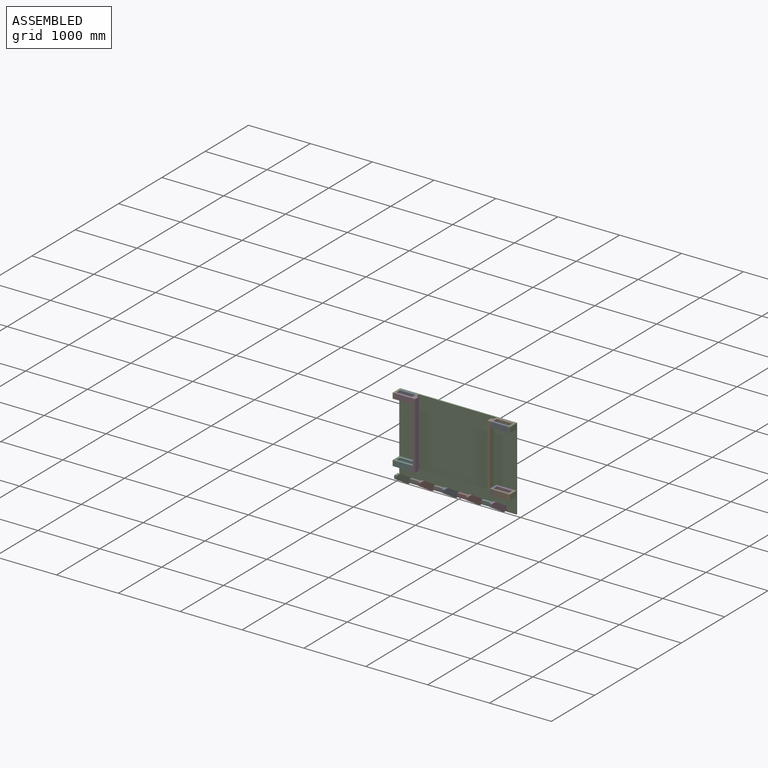
[diagram: assembled view]
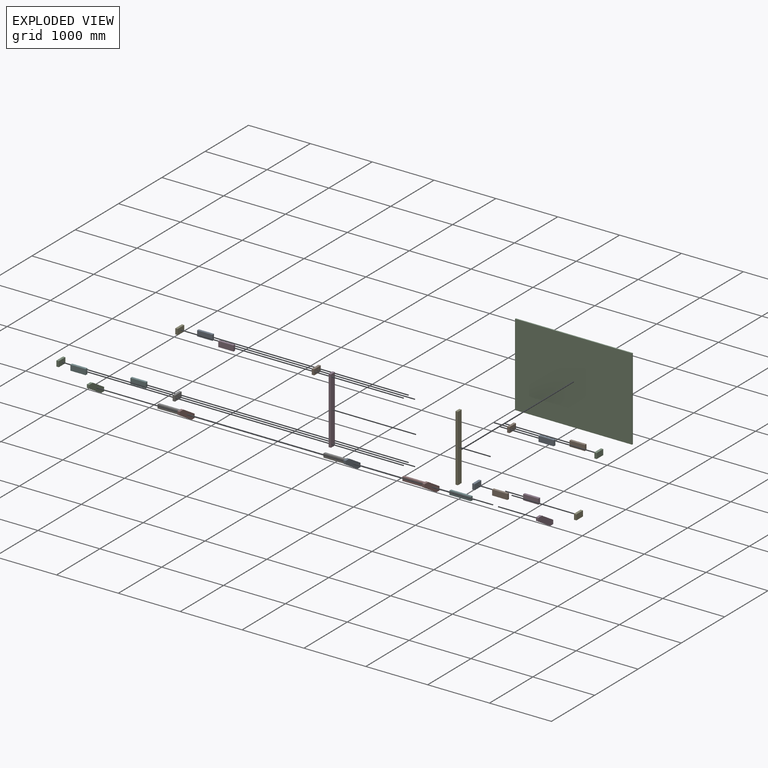
[diagram: exploded view]
GUIDED TOUR — MATED ASSEMBLY (Onshape document a717d182e45f5ee2817b2806, AutoMate assembly a717d182e45f5ee2817b2806_24babec2c8e26cd1942f65e2_57b267885e59902b762f2311_default)

This assembly has 28 components, labeled P0..P27 below (a component is one placed occurrence of a part; the same part can appear more than once), held together by 26 mates. A mate is a constraint between two components; its type names the relative motion it leaves free:
  FASTENED — locks the two components together rigidly (no relative motion).
Axis/direction vectors are unit vectors and 'through' points are millimeter coordinates, both in the assembly's world frame.

MATES
  1. FASTENED "Fastened 25": P23 <-> P14, direction (1.000, 0.000, 0.000) through (-365.15, -19.05, -647.70) mm
  2. FASTENED "Fastened 11": P20 <-> P0, direction (1.000, 0.000, 0.000) through (622.30, -171.45, -406.40) mm
  3. FASTENED "Fastened 14": P25 <-> P12, direction (1.000, 0.000, 0.000) through (908.05, -171.45, -406.40) mm
  4. FASTENED "Fastened 15": P22 <-> P19, direction (1.000, 0.000, 0.000) through (-622.30, -171.45, -406.40) mm
  5. FASTENED "Fastened 23": P10 <-> P6, direction (1.000, 0.000, 0.000) through (-750.90, -19.05, -647.70) mm
  6. FASTENED "Fastened 6": P26 <-> P17, direction (-1.000, 0.000, 0.000) through (908.05, -19.05, 666.75) mm
  7. FASTENED "Fastened 8": P24 <-> P1, direction (-1.000, 0.000, 0.000) through (660.40, -171.45, 577.85) mm
  8. FASTENED "Fastened 12": P0 <-> P25, direction (1.000, 0.000, 0.000) through (660.40, -171.45, -406.40) mm
  9. FASTENED "Fastened 1": P18 <-> P4, direction (0.000, -1.000, 0.000) through (-946.15, -19.05, 666.75) mm
  10. FASTENED "Fastened 7": P24 <-> P26, direction (1.000, 0.000, 0.000) through (908.05, -171.45, 577.85) mm
  11. FASTENED "Fastened 26": P14 <-> P16, direction (1.000, 0.000, 0.000) through (-17.50, -19.05, -647.70) mm
  12. FASTENED "Fastened 16": P22 <-> P5, direction (-1.000, 0.000, 0.000) through (-660.40, -19.05, -406.40) mm
  13. FASTENED "Fastened 27": P16 <-> P15, direction (1.000, 0.000, 0.000) through (20.60, -19.05, -647.70) mm
  14. FASTENED "Fastened 18": P5 <-> P2, direction (-1.000, 0.000, 0.000) through (-908.05, -19.05, -406.40) mm
  15. FASTENED "Fastened 30": P13 <-> P3, direction (1.000, 0.000, 0.000) through (754.00, -19.05, -647.70) mm
  16. FASTENED "Fastened 29": P7 <-> P13, direction (1.000, 0.000, 0.000) through (406.35, -19.05, -647.70) mm
  17. FASTENED "Fastened 24": P6 <-> P23, direction (1.000, 0.000, 0.000) through (-403.25, -19.05, -647.70) mm
  18. FASTENED "Fastened 28": P15 <-> P7, direction (1.000, 0.000, 0.000) through (368.25, -19.05, -647.70) mm
  19. FASTENED "Fastened 17": P21 <-> P22, direction (1.000, 0.000, 0.000) through (-660.40, -171.45, -406.40) mm
  20. FASTENED "Fastened 9": P9 <-> P19, direction (1.000, 0.000, 0.000) through (-622.30, -171.45, 666.75) mm
  21. FASTENED "Fastened 2": P4 <-> P8, direction (1.000, 0.000, 0.000) through (-908.05, -19.05, 577.85) mm
  22. FASTENED "Fastened 13": P0 <-> P11, direction (1.000, 0.000, 0.000) through (660.40, -19.05, -406.40) mm
  23. FASTENED "Fastened 3": P4 <-> P27, direction (1.000, 0.000, 0.000) through (-908.05, -171.45, 577.85) mm
  24. FASTENED "Fastened 4": P9 <-> P27, direction (-1.000, 0.000, 0.000) through (-660.40, -171.45, 577.85) mm
  25. FASTENED "Fastened 5": P18 <-> P26, direction (0.000, -1.000, 0.000) through (946.15, -19.05, 666.75) mm
  26. FASTENED "Fastened 10": P1 <-> P20, direction (-1.000, 0.000, 0.000) through (622.30, -171.45, 666.75) mm

ASSEMBLY ORDER
  1. P25 — the base component [order verified]
  2. P11 [order verified]
  3. P0 [order verified]
  4. P20 [order verified]
  5. P13 [order verified]
  6. P7 [order verified]
  7. P15 [order verified]
  8. P3 [order verified]
  9. P14 [order verified]
  10. P16 [order verified]
  11. P6 [order verified]
  12. P19 [order verified]
  13. P9 [order verified]
  14. P12 [order verified]
  15. P21 [order verified]
  16. P5 [order verified]
  17. P4 [order verified]
  18. P24 [order verified]
  19. P17 [order verified]
  20. P23 [order verified]
  21. P10 [order verified]
  22. P27 [order verified]
  23. P8 [order verified]
  24. P22 [order verified]
  25. P1 [order verified]
  26. P26 [order verified]
  27. P2 [order verified]
  28. P18 [order verified]
Order-tag legend:
  [order verified] — this step's position reverses a verified removal order: the component was checked to insert without passing through the ones already placed.

Of the 28 components, 28 carry the full construction recipe — the FeatureScript program that regenerates the part's solid from scratch; the rest are supplied as boundary geometry only.
Because this assembly has more than 12 components, the tour below covers the 12 most significant ones individually (every recipe-attached component first, then the largest by part volume), in assembly order; the remaining 16 are summarized together in a grouped section at the end.
Each toured component is shown spotlighted twice — in the assembled view, then in the exploded view, where a leader line traces a displaced component back to its assembled socket (saturated green if recipe-attached, orange if geometry-only; every other component desaturated gray) — followed by its recipe or geometry summary and the mates that hold it.
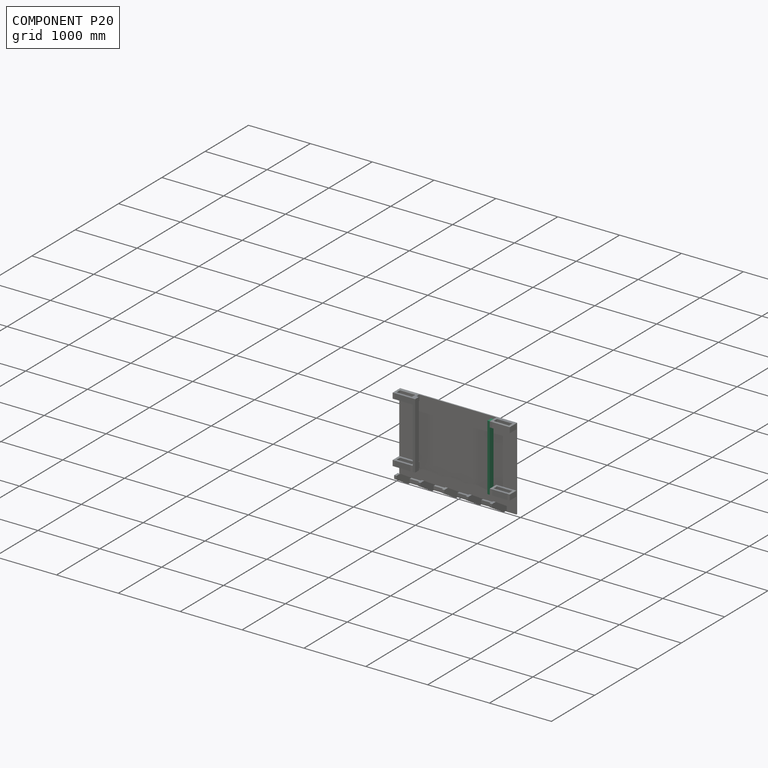
[diagram: component P20 — assembled]
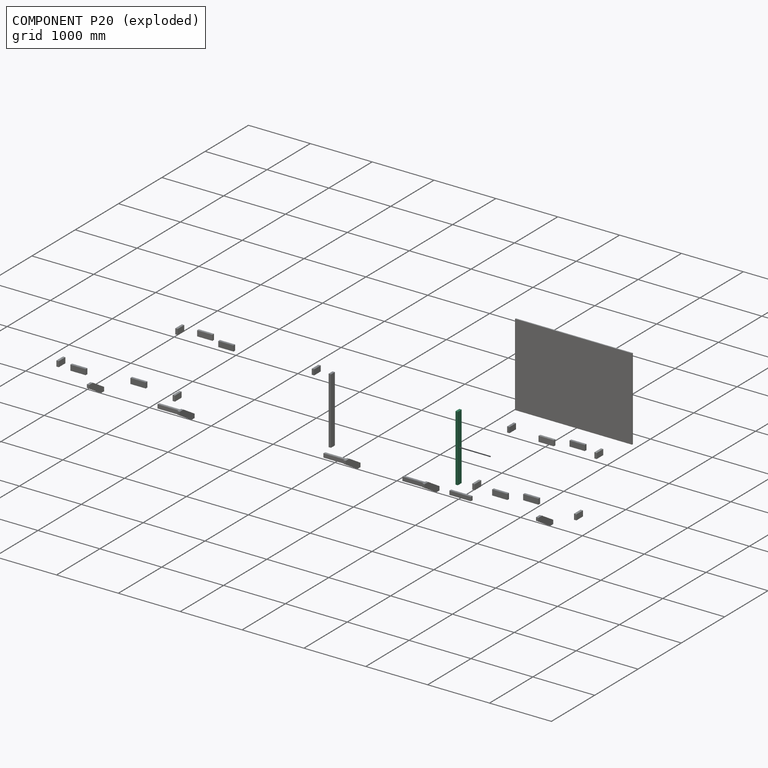
[diagram: component P20 — exploded]
COMPONENT P20 — same part as P19 (CADFS 00651156); its construction recipe is shown at P19.
Held by: FASTENED mate "Fastened 11" to P0; FASTENED mate "Fastened 10" to P1.
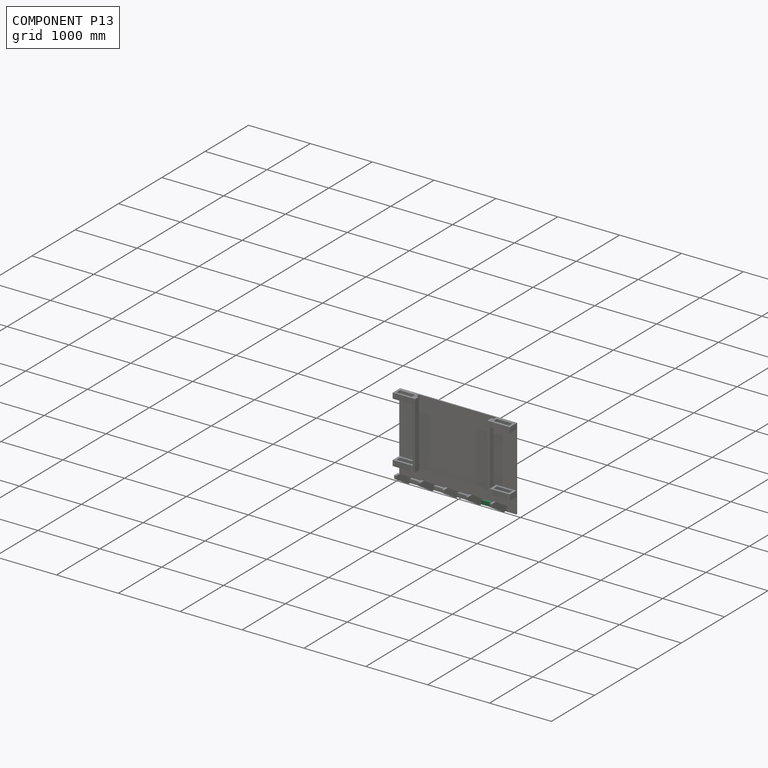
[diagram: component P13 — assembled]
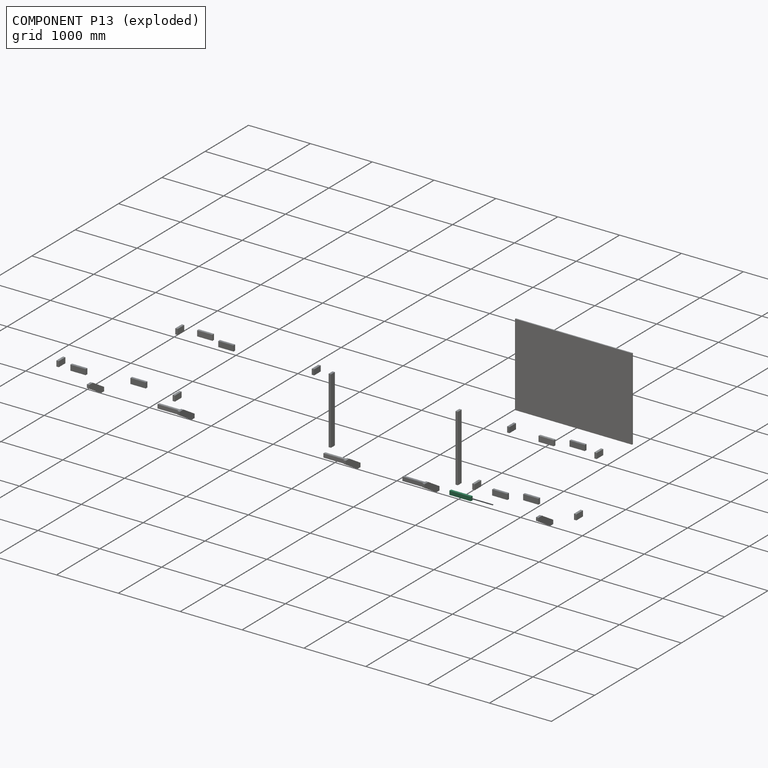
[diagram: component P13 — exploded]
COMPONENT P13 — same part as P6 (CADFS 00651160); its construction recipe is shown at P6.
Held by: FASTENED mate "Fastened 30" to P3; FASTENED mate "Fastened 29" to P7.
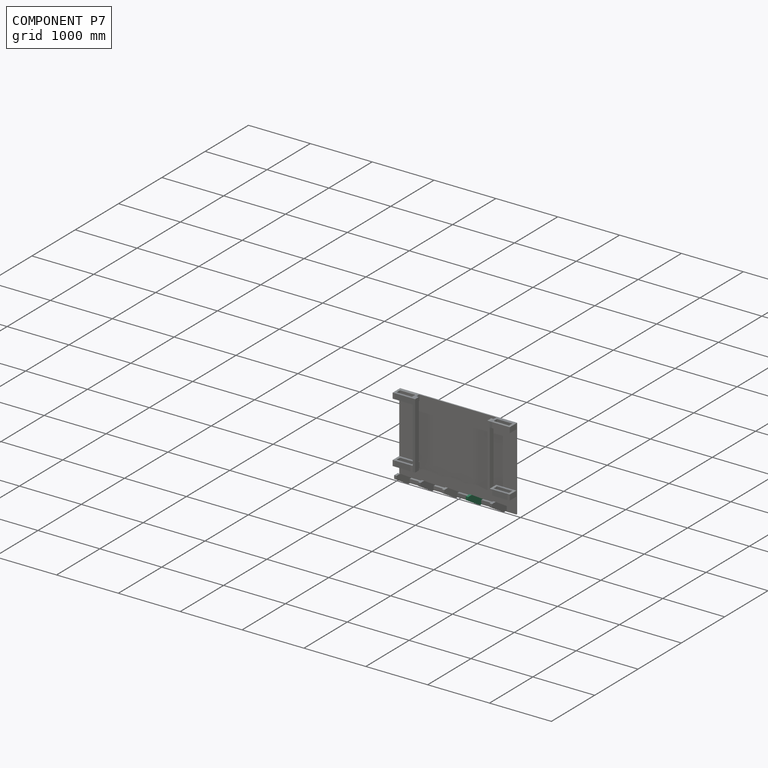
[diagram: component P7 — assembled]
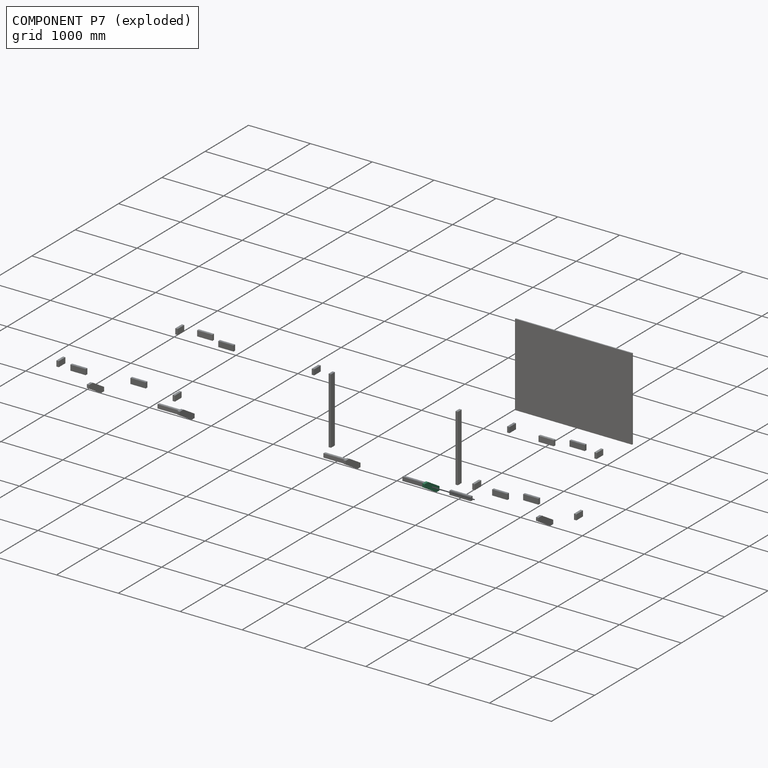
[diagram: component P7 — exploded]
COMPONENT P7 — same part as P3 (CADFS 00651155); its construction recipe is shown at P3.
Held by: FASTENED mate "Fastened 29" to P13; FASTENED mate "Fastened 28" to P15.
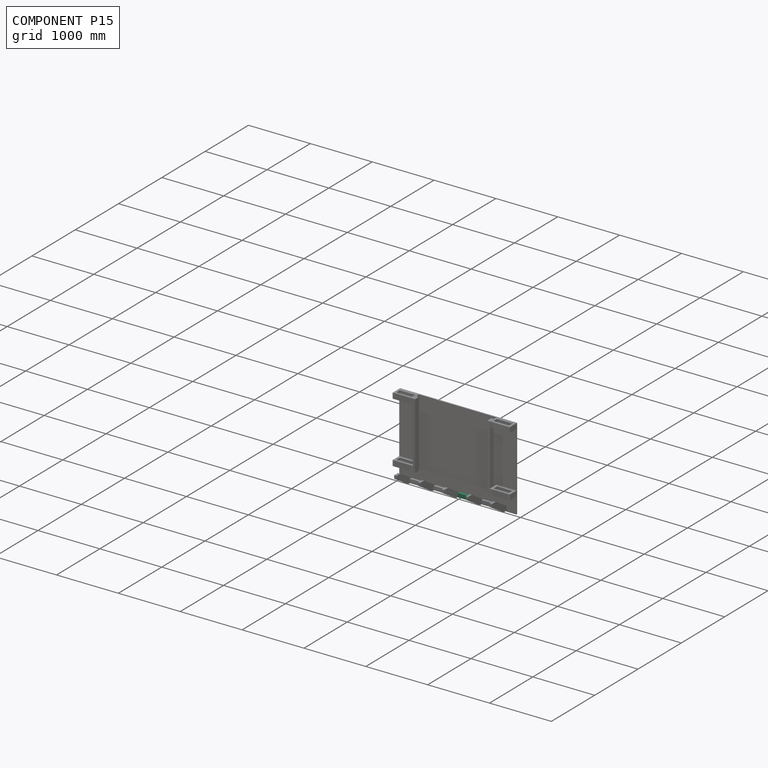
[diagram: component P15 — assembled]
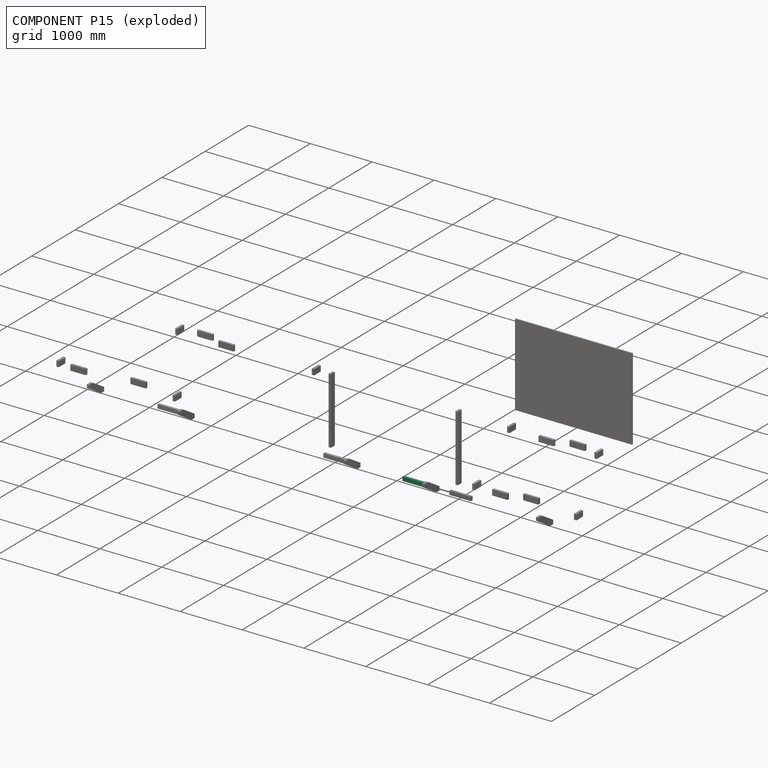
[diagram: component P15 — exploded]
COMPONENT P15 — same part as P6 (CADFS 00651160); its construction recipe is shown at P6.
Held by: FASTENED mate "Fastened 27" to P16; FASTENED mate "Fastened 28" to P7.
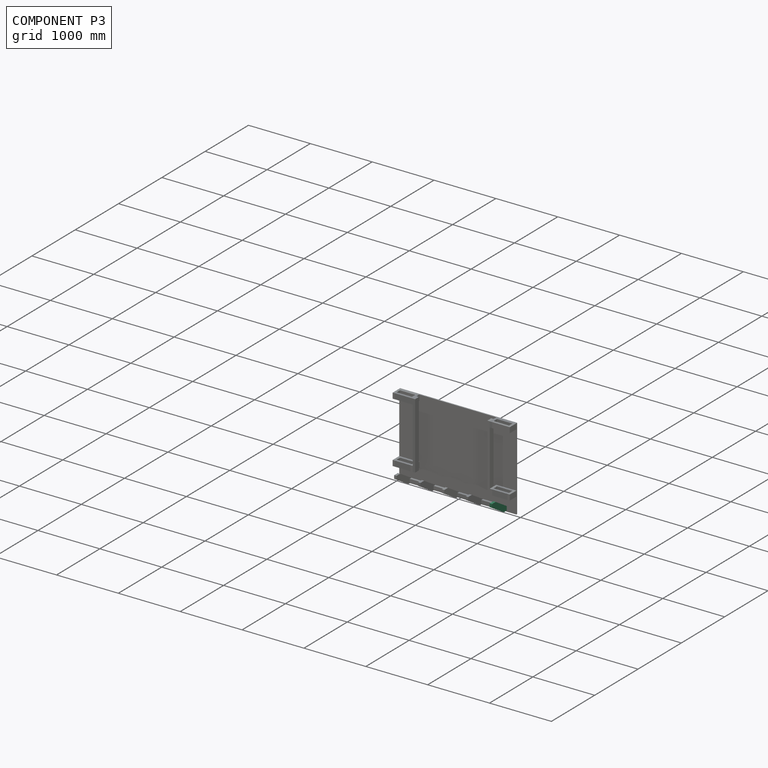
[diagram: component P3 — assembled]
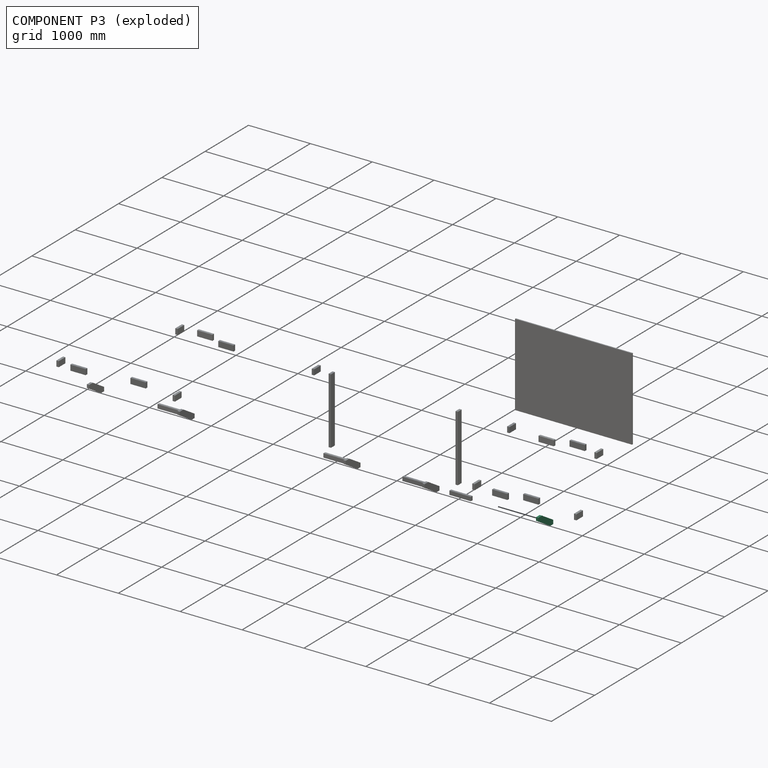
[diagram: component P3 — exploded]
COMPONENT P3 — recipe-attached (CADFS 00651155, mesh-verified: the recipe's output STEP matches this component's geometry to below the mesh-comparison resolution (tessellation chordal tolerance ~0.616 mm)).
Held by: FASTENED mate "Fastened 30" to P13.
Construction recipe (FeatureScript — the CAD program that rebuilds this solid; sketch coordinates are in the units given by the * unit suffixes, e.g. mm):

FeatureScript 1511;
import(path : "onshape/std/geometry.fs", version : "1511.0");
import(path : "onshape/std/common.fs", version : "1511.0");
const mm = millimeter;
const VERTEX = EntityType.VERTEX;
const EDGE = EntityType.EDGE;
const FACE = EntityType.FACE;
const BODY = EntityType.BODY;
function v(x, y){return vector(x, y);}
function OD(order){return orderDisambiguation(order);}
function OSD(set){return originalSetDisambiguation(set);}
function TD(topology){return topologyDisambiguation(topology);}
function TDD(query){return trueDependencyDisambiguation(query);}
function sQuery(a, b, c) {return sketchEntityQuery(a, b, c);}

annotation { "Feature Type Name" : "Feature", "Feature Type Description" : "" }
export const myFeature = defineFeature(function(context is Context, id is Id, definition is map)
    precondition{}
    {
        {
            var Q0;
            Q0=qCreatedBy(makeId("Right.planeOp"),FACE);
            var sketch = newSketch(context, id + "F0", { "sketchPlane" : qUnion([Q0])});
            skPoint(sketch, "E0.middle", {"position": v(0, 0) * mm});
            skLineSegment(sketch, "E1.0", {"start": v(96.03, 111.13) * mm, "end": v(-161.92, -47.27) * mm});
            skLineSegment(sketch, "E2.0", {"start": v(180.98, 58.96) * mm, "end": v(-96.03, -111.13) * mm});
            skLineSegment(sketch, "E3", {"start": v(180.98, 111.13) * mm, "end": v(180.98, 58.96) * mm});
            skLineSegment(sketch, "E4", {"start": v(180.98, 111.13) * mm, "end": v(96.03, 111.12) * mm});
            skLineSegment(sketch, "E5", {"start": v(-161.92, -111.13) * mm, "end": v(-96.03, -111.13) * mm});
            skLineSegment(sketch, "E6", {"start": v(-161.92, -47.27) * mm, "end": v(-161.92, -111.13) * mm});
            skSolve(sketch);
        }
        {
            var Q0;
            Q0=makeQuery(id+"F0.imprint","IMPRINT",FACE,{"disambiguationData":[TD([[makeQuery(id+"F0.imprint","IMPRINT",EDGE,{"derivedFrom":sQuery(id+"F0.wireOp",EDGE,"E1.0")}),1.0]])]});
            extrude(context, id + "F1", {"entities" : qUnion([Q0]), "endBound" : BoundingType.SYMMETRIC, "depth" : 38.1 * mm, "offsetDistance" : 25.4 * mm});
        }
    });
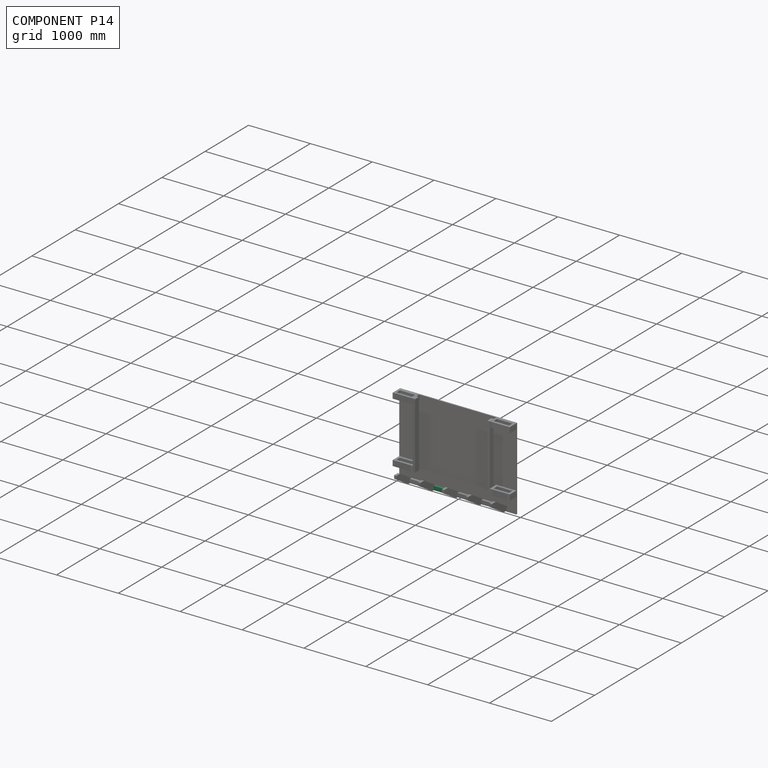
[diagram: component P14 — assembled]
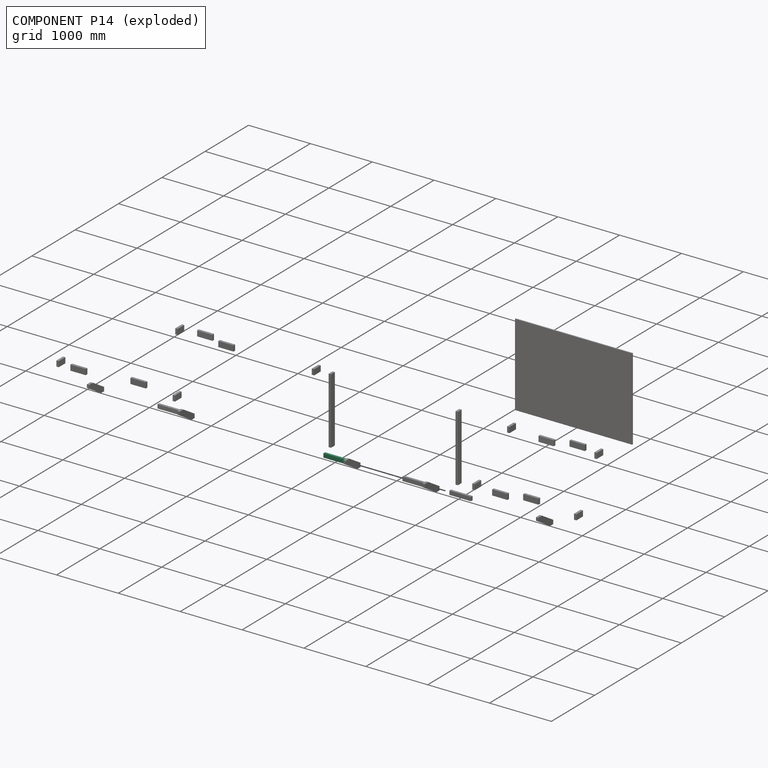
[diagram: component P14 — exploded]
COMPONENT P14 — same part as P6 (CADFS 00651160); its construction recipe is shown at P6.
Held by: FASTENED mate "Fastened 25" to P23; FASTENED mate "Fastened 26" to P16.
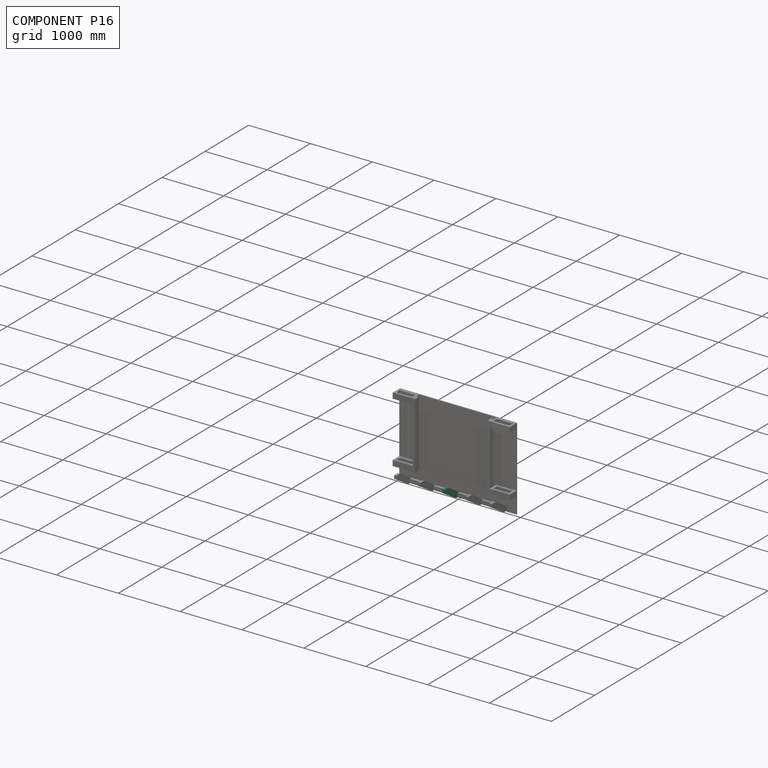
[diagram: component P16 — assembled]
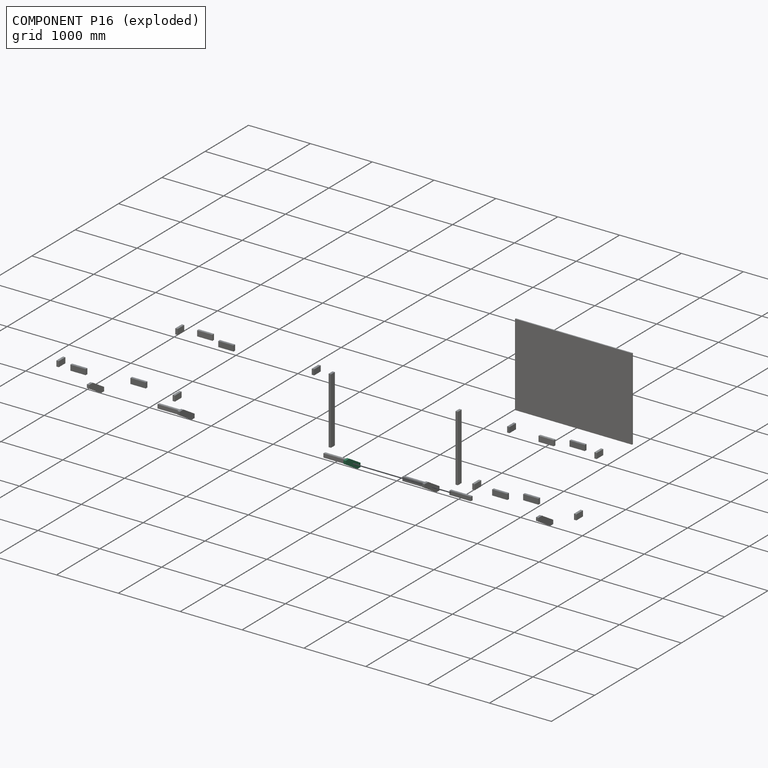
[diagram: component P16 — exploded]
COMPONENT P16 — same part as P3 (CADFS 00651155); its construction recipe is shown at P3.
Held by: FASTENED mate "Fastened 26" to P14; FASTENED mate "Fastened 27" to P15.
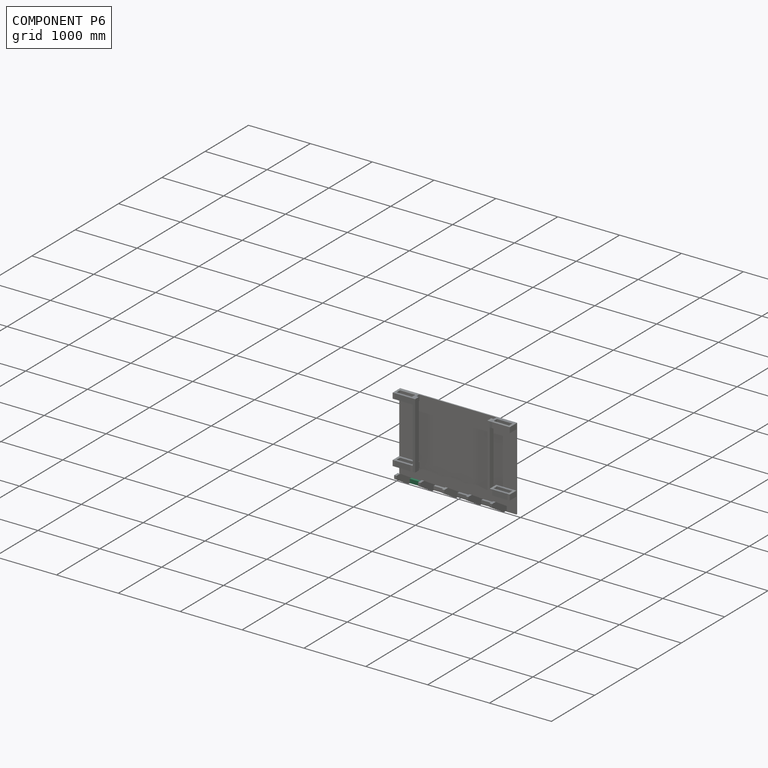
[diagram: component P6 — assembled]
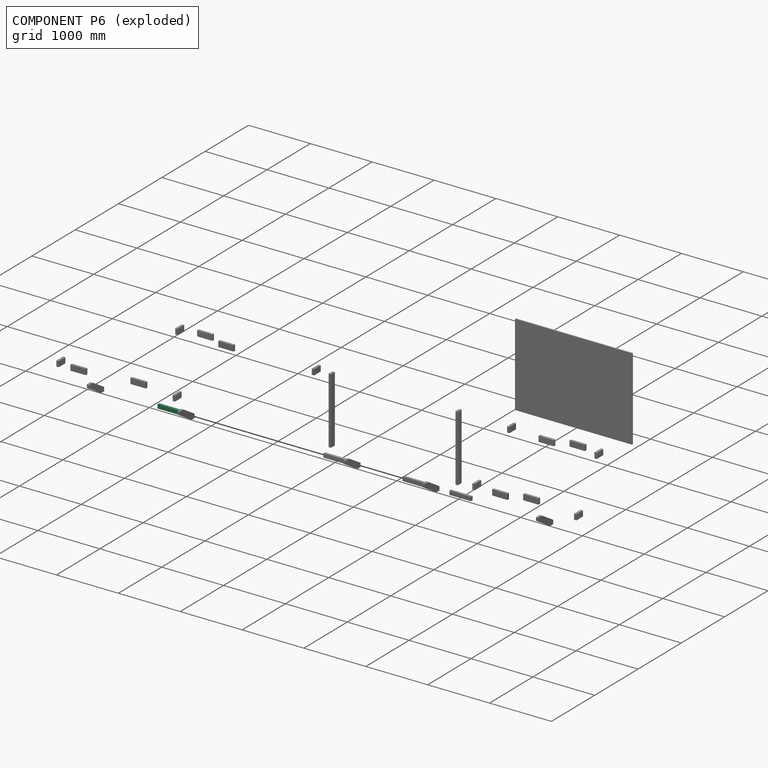
[diagram: component P6 — exploded]
COMPONENT P6 — recipe-attached (CADFS 00651160, mesh-verified: the recipe's output STEP matches this component's geometry to below the mesh-comparison resolution (tessellation chordal tolerance ~0.533 mm)).
Held by: FASTENED mate "Fastened 23" to P10; FASTENED mate "Fastened 24" to P23.
Construction recipe (FeatureScript — the CAD program that rebuilds this solid; sketch coordinates are in the units given by the * unit suffixes, e.g. mm):

FeatureScript 1511;
import(path : "onshape/std/geometry.fs", version : "1511.0");
import(path : "onshape/std/common.fs", version : "1511.0");
const mm = millimeter;
const VERTEX = EntityType.VERTEX;
const EDGE = EntityType.EDGE;
const FACE = EntityType.FACE;
const BODY = EntityType.BODY;
function v(x, y){return vector(x, y);}
function OD(order){return orderDisambiguation(order);}
function OSD(set){return originalSetDisambiguation(set);}
function TD(topology){return topologyDisambiguation(topology);}
function TDD(query){return trueDependencyDisambiguation(query);}
function sQuery(a, b, c) {return sketchEntityQuery(a, b, c);}

annotation { "Feature Type Name" : "Feature", "Feature Type Description" : "" }
export const myFeature = defineFeature(function(context is Context, id is Id, definition is map)
    precondition{}
    {
        {
            var Q0;
            Q0=qCreatedBy(makeId("Right.planeOp"),FACE);
            var sketch = newSketch(context, id + "F0", { "sketchPlane" : qUnion([Q0])});
            skLineSegment(sketch, "E0.bottom", {"start": v(19.05, 31.93) * mm, "end": v(-19.05, 31.93) * mm});
            skLineSegment(sketch, "E0.top", {"start": v(19.05, -31.93) * mm, "end": v(-19.05, -31.93) * mm});
            skLineSegment(sketch, "E0.left", {"start": v(19.05, 31.93) * mm, "end": v(19.05, -31.93) * mm});
            skLineSegment(sketch, "E0.right", {"start": v(-19.05, 31.93) * mm, "end": v(-19.05, -31.93) * mm});
            skPoint(sketch, "E0.middle", {"position": v(0, 0) * mm});
            skSolve(sketch);
        }
        {
            var Q0;
            Q0=makeQuery(id+"F0.imprint","IMPRINT",FACE,{"disambiguationData":[TD([[makeQuery(id+"F0.imprint","IMPRINT",EDGE,{"derivedFrom":sQuery(id+"F0.wireOp",EDGE,"E0.bottom")}),1.0]])]});
            extrude(context, id + "F1", {"entities" : qUnion([Q0]), "depth" : 347.65 * mm, "offsetDistance" : 25.4 * mm});
        }
    });
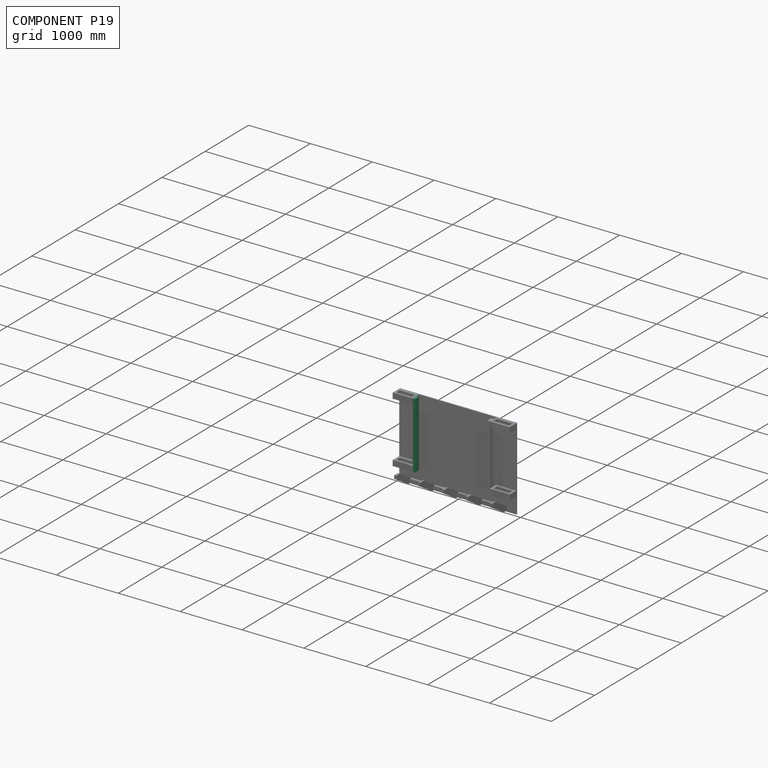
[diagram: component P19 — assembled]
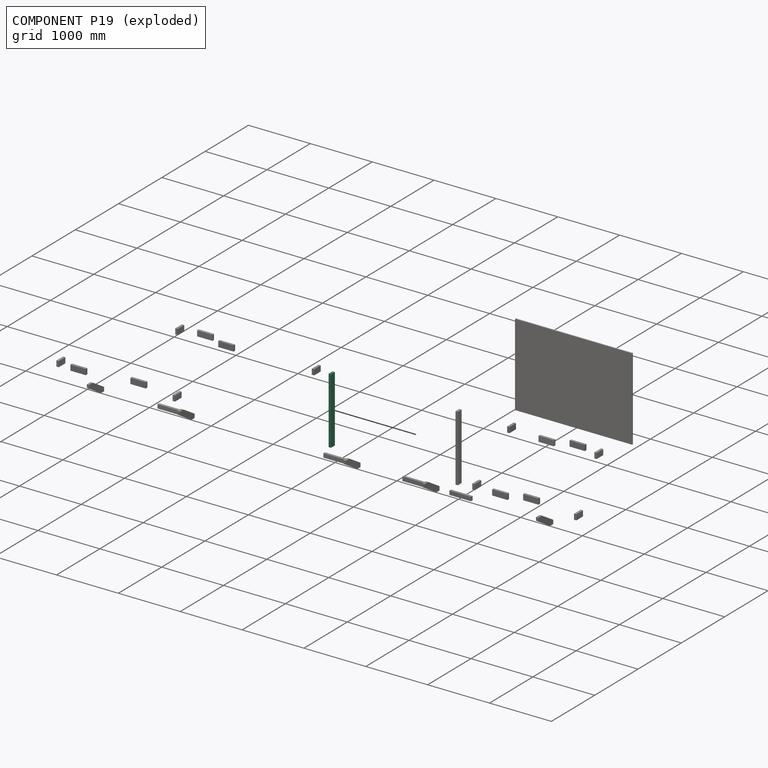
[diagram: component P19 — exploded]
COMPONENT P19 — recipe-attached (CADFS 00651156, mesh-verified: the recipe's output STEP matches this component's geometry to below the mesh-comparison resolution (tessellation chordal tolerance ~1.62 mm)).
Held by: FASTENED mate "Fastened 15" to P22; FASTENED mate "Fastened 9" to P9.
Construction recipe (FeatureScript — the CAD program that rebuilds this solid; sketch coordinates are in the units given by the * unit suffixes, e.g. mm):

FeatureScript 1511;
import(path : "onshape/std/geometry.fs", version : "1511.0");
import(path : "onshape/std/common.fs", version : "1511.0");
const mm = millimeter;
const VERTEX = EntityType.VERTEX;
const EDGE = EntityType.EDGE;
const FACE = EntityType.FACE;
const BODY = EntityType.BODY;
function v(x, y){return vector(x, y);}
function OD(order){return orderDisambiguation(order);}
function OSD(set){return originalSetDisambiguation(set);}
function TD(topology){return topologyDisambiguation(topology);}
function TDD(query){return trueDependencyDisambiguation(query);}
function sQuery(a, b, c) {return sketchEntityQuery(a, b, c);}

annotation { "Feature Type Name" : "Feature", "Feature Type Description" : "" }
export const myFeature = defineFeature(function(context is Context, id is Id, definition is map)
    precondition{}
    {
        {
            var Q0;
            Q0=qCreatedBy(makeId("Top.planeOp"),FACE);
            var sketch = newSketch(context, id + "F0", { "sketchPlane" : qUnion([Q0])});
            skLineSegment(sketch, "E0.bottom", {"start": v(19.05, -44.45) * mm, "end": v(-19.05, -44.45) * mm});
            skLineSegment(sketch, "E0.top", {"start": v(19.05, 44.45) * mm, "end": v(-19.05, 44.45) * mm});
            skLineSegment(sketch, "E0.left", {"start": v(19.05, -44.45) * mm, "end": v(19.05, 44.45) * mm});
            skLineSegment(sketch, "E0.right", {"start": v(-19.05, -44.45) * mm, "end": v(-19.05, 44.45) * mm});
            skPoint(sketch, "E0.middle", {"position": v(0, 0) * mm});
            skSolve(sketch);
        }
        {
            var Q0;
            Q0 = qSketchRegion(id + "F0", true);
            var Q1;
            Q1=makeQuery(id+"F0.imprint","IMPRINT",FACE,{"disambiguationData":[TD([[makeQuery(id+"F0.imprint","IMPRINT",EDGE,{"derivedFrom":sQuery(id+"F0.wireOp",EDGE,"c484430e-5b11-4d19-9ad6-bfa51f2c2b4a.bottom")}),1.0]])]});
            extrude(context, id + "F1", {"entities" : qUnion([Q0, Q1]), "depth" : 1073.15 * mm, "offsetDistance" : 25.4 * mm});
        }
    });
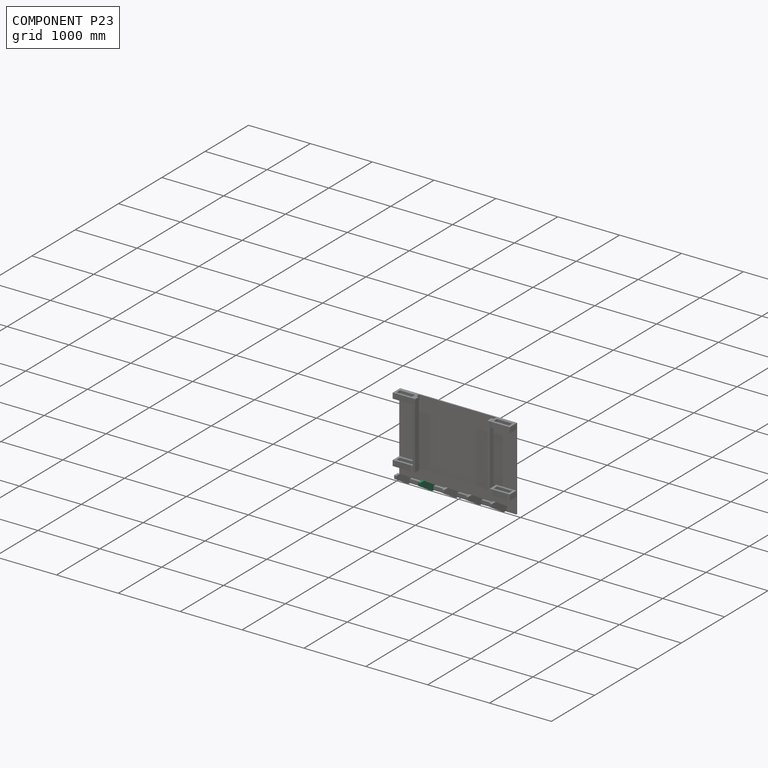
[diagram: component P23 — assembled]
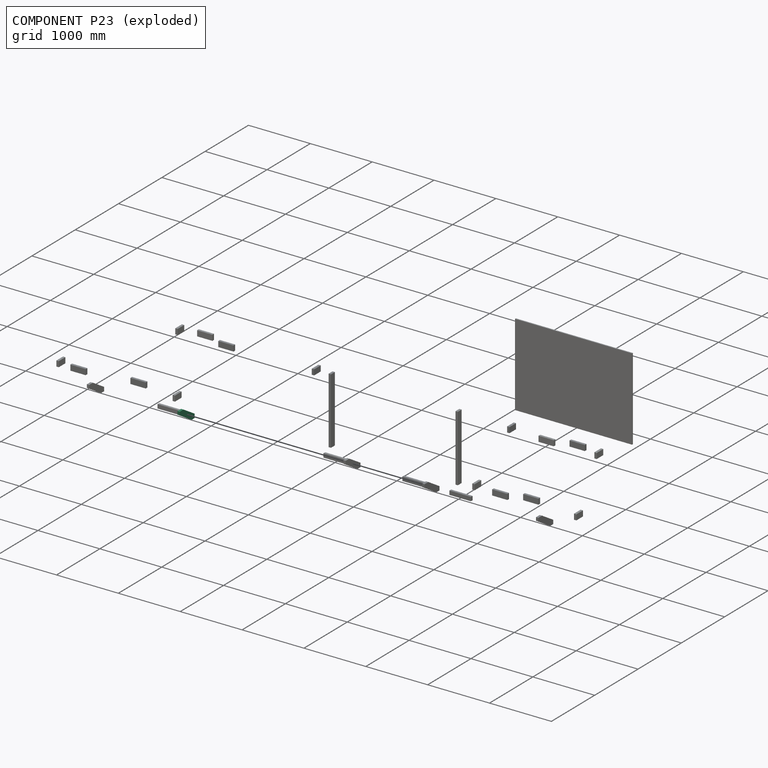
[diagram: component P23 — exploded]
COMPONENT P23 — same part as P3 (CADFS 00651155); its construction recipe is shown at P3.
Held by: FASTENED mate "Fastened 25" to P14; FASTENED mate "Fastened 24" to P6.
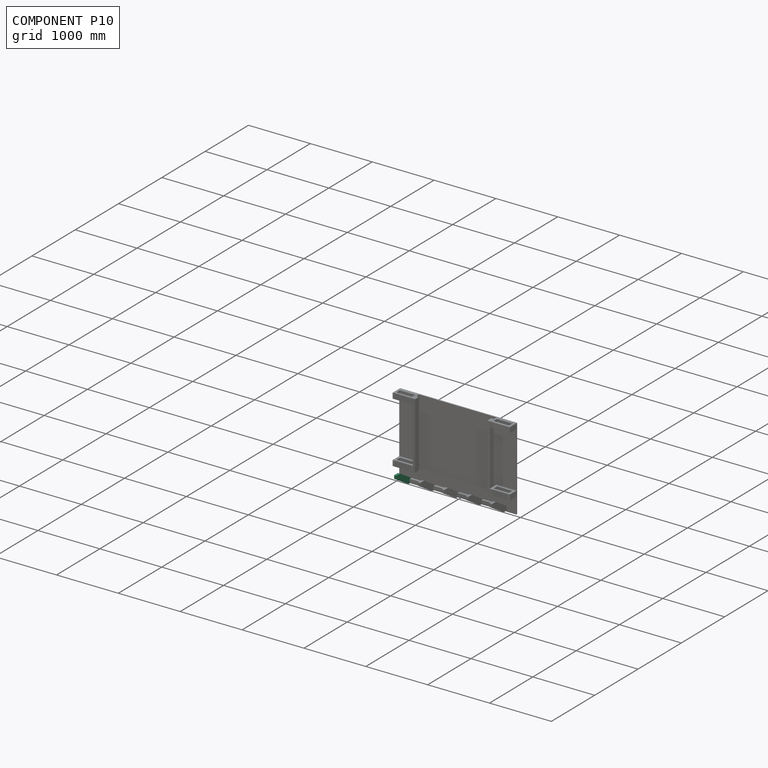
[diagram: component P10 — assembled]
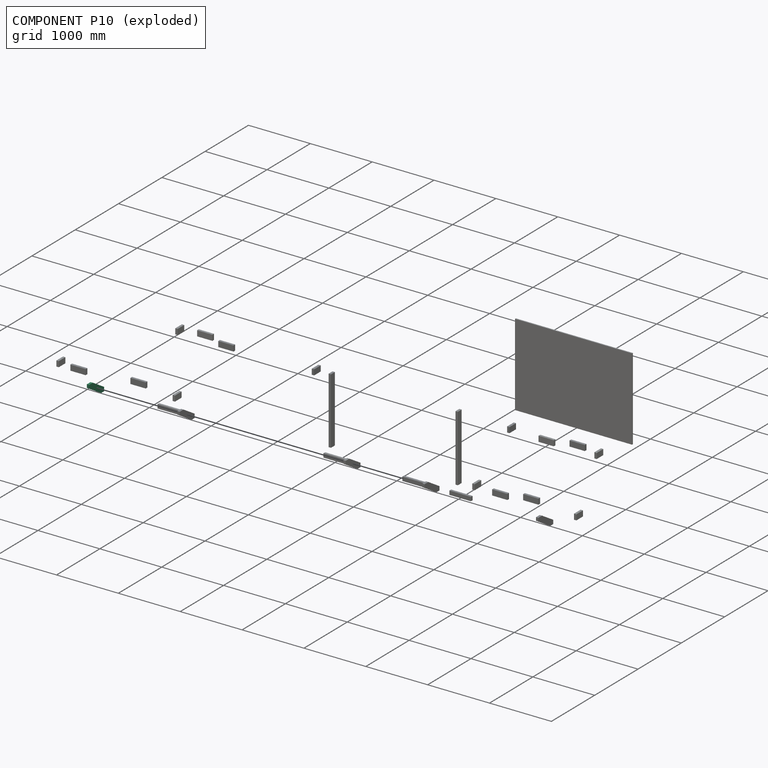
[diagram: component P10 — exploded]
COMPONENT P10 — same part as P3 (CADFS 00651155); its construction recipe is shown at P3.
Held by: FASTENED mate "Fastened 23" to P6.
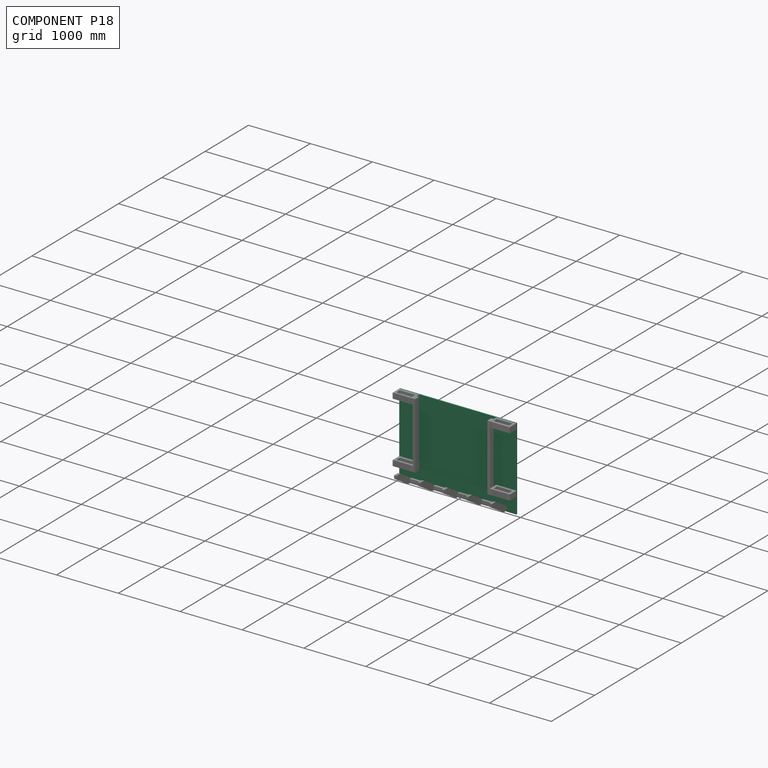
[diagram: component P18 — assembled]
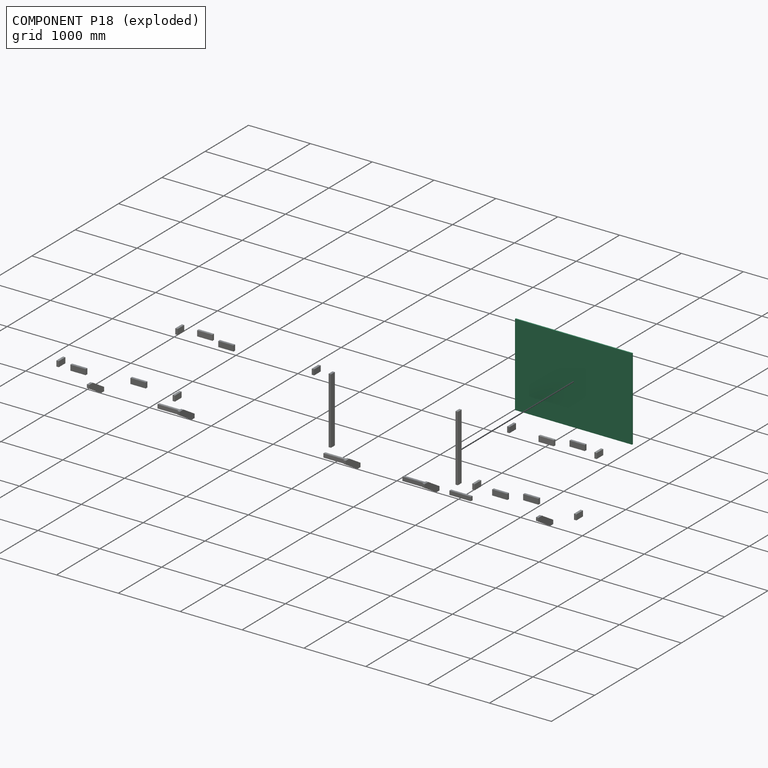
[diagram: component P18 — exploded]
COMPONENT P18 — recipe-attached (CADFS 00651154, mesh-verified: the recipe's output STEP matches this component's geometry to below the mesh-comparison resolution (tessellation chordal tolerance ~3.47 mm)).
Held by: FASTENED mate "Fastened 1" to P4; FASTENED mate "Fastened 5" to P26.
Construction recipe (FeatureScript — the CAD program that rebuilds this solid; sketch coordinates are in the units given by the * unit suffixes, e.g. mm):

FeatureScript 1511;
import(path : "onshape/std/geometry.fs", version : "1511.0");
import(path : "onshape/std/common.fs", version : "1511.0");
const mm = millimeter;
const VERTEX = EntityType.VERTEX;
const EDGE = EntityType.EDGE;
const FACE = EntityType.FACE;
const BODY = EntityType.BODY;
function v(x, y){return vector(x, y);}
function OD(order){return orderDisambiguation(order);}
function OSD(set){return originalSetDisambiguation(set);}
function TD(topology){return topologyDisambiguation(topology);}
function TDD(query){return trueDependencyDisambiguation(query);}
function sQuery(a, b, c) {return sketchEntityQuery(a, b, c);}

annotation { "Feature Type Name" : "Feature", "Feature Type Description" : "" }
export const myFeature = defineFeature(function(context is Context, id is Id, definition is map)
    precondition{}
    {
        {
            var Q0;
            Q0=qCreatedBy(makeId("Front.planeOp"),FACE);
            var sketch = newSketch(context, id + "F0", { "sketchPlane" : qUnion([Q0])});
            skLineSegment(sketch, "E0.bottom", {"start": v(946.15, 666.75) * mm, "end": v(-946.15, 666.75) * mm});
            skLineSegment(sketch, "E0.top", {"start": v(946.15, -666.75) * mm, "end": v(-946.15, -666.75) * mm});
            skLineSegment(sketch, "E0.left", {"start": v(946.15, 666.75) * mm, "end": v(946.15, -666.75) * mm});
            skLineSegment(sketch, "E0.right", {"start": v(-946.15, 666.75) * mm, "end": v(-946.15, -666.75) * mm});
            skPoint(sketch, "E0.middle", {"position": v(0, 0) * mm});
            skSolve(sketch);
        }
        {
            var Q0;
            Q0=makeQuery(id+"F0.imprint","IMPRINT",FACE,{"disambiguationData":[TD([[makeQuery(id+"F0.imprint","IMPRINT",EDGE,{"derivedFrom":sQuery(id+"F0.wireOp",EDGE,"E0.bottom")}),1.0]])]});
            extrude(context, id + "F1", {"entities" : qUnion([Q0]), "depth" : 19.05 * mm, "offsetDistance" : 25.4 * mm});
        }
    });
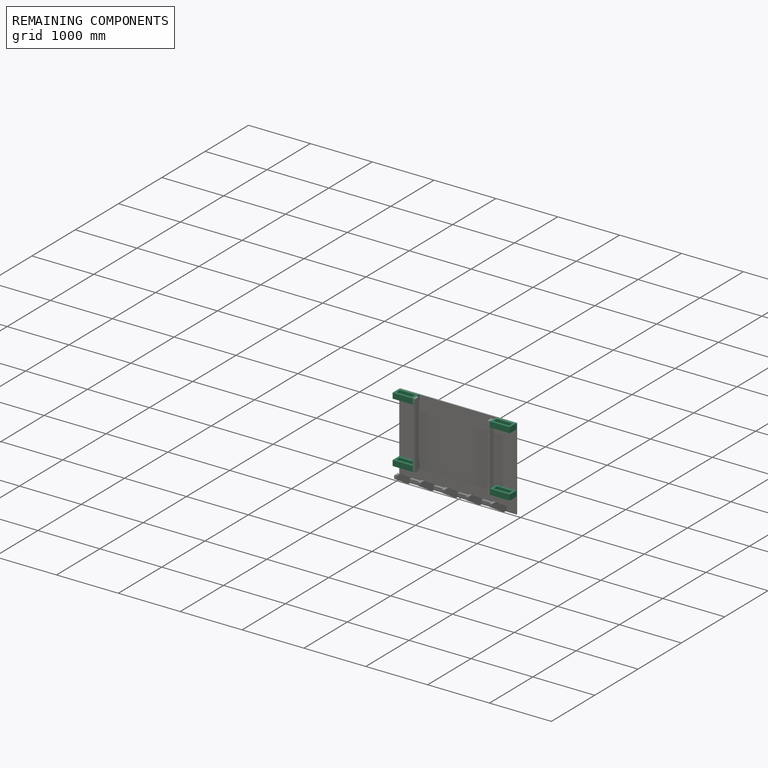
[diagram: remaining components — assembled]
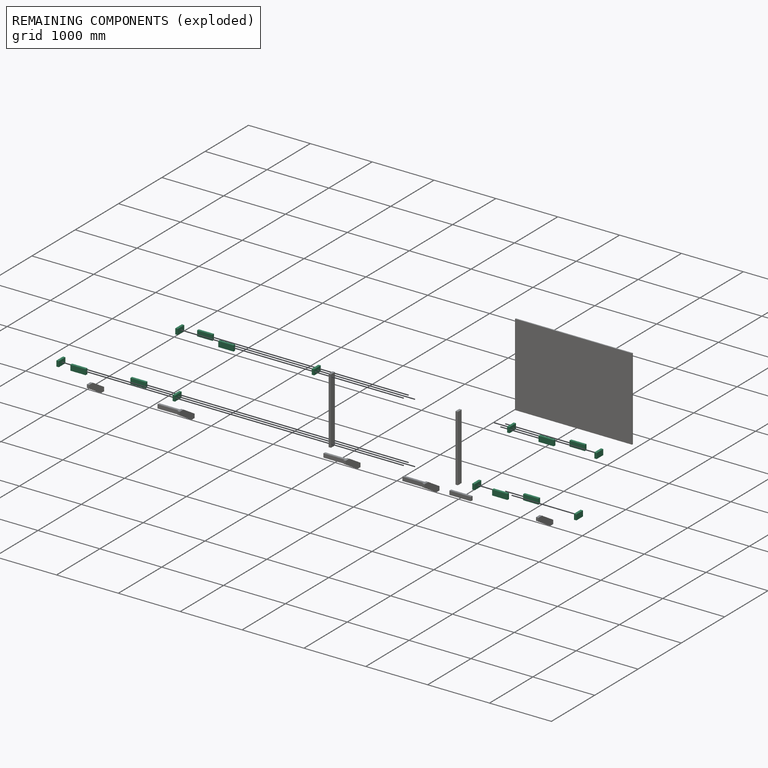
[diagram: remaining components — exploded]
REMAINING COMPONENTS (grouped) — the 16 components below fall outside the per-component tour by the significance rule stated above; both spotlight views highlight the whole group.
  P25: bounding box 247.7 x 88.9 x 38.1 mm, volume 838813 mm^3. Recipe-attached (CADFS 00651158; recipe not printed under the significance rule). Held by: FASTENED mate "Fastened 14" to P12; FASTENED mate "Fastened 12" to P0.
  P11: bounding box 247.7 x 88.9 x 38.1 mm, volume 838813 mm^3. Recipe-attached (CADFS 00651158; recipe not printed under the significance rule). Held by: FASTENED mate "Fastened 13" to P0.
  P0: bounding box 152.4 x 88.9 x 38.1 mm, volume 516193 mm^3. Recipe-attached (CADFS 00651157; recipe not printed under the significance rule). Held by: FASTENED mate "Fastened 11" to P20; FASTENED mate "Fastened 12" to P25; FASTENED mate "Fastened 13" to P11.
  P9: bounding box 152.4 x 88.9 x 38.1 mm, volume 516193 mm^3. Recipe-attached (CADFS 00651157; recipe not printed under the significance rule). Held by: FASTENED mate "Fastened 9" to P19; FASTENED mate "Fastened 4" to P27.
  P12: bounding box 152.4 x 88.9 x 38.1 mm, volume 516193 mm^3. Recipe-attached (CADFS 00651157; recipe not printed under the significance rule). Held by: FASTENED mate "Fastened 14" to P25.
  P21: bounding box 247.7 x 88.9 x 38.1 mm, volume 838813 mm^3. Recipe-attached (CADFS 00651158; recipe not printed under the significance rule). Held by: FASTENED mate "Fastened 17" to P22.
  P5: bounding box 247.7 x 88.9 x 38.1 mm, volume 838813 mm^3. Recipe-attached (CADFS 00651158; recipe not printed under the significance rule). Held by: FASTENED mate "Fastened 16" to P22; FASTENED mate "Fastened 18" to P2.
  P4: bounding box 152.4 x 88.9 x 38.1 mm, volume 516193 mm^3. Recipe-attached (CADFS 00651157; recipe not printed under the significance rule). Held by: FASTENED mate "Fastened 1" to P18; FASTENED mate "Fastened 2" to P8; FASTENED mate "Fastened 3" to P27.
  P24: bounding box 247.7 x 88.9 x 38.1 mm, volume 838813 mm^3. Recipe-attached (CADFS 00651158; recipe not printed under the significance rule). Held by: FASTENED mate "Fastened 8" to P1; FASTENED mate "Fastened 7" to P26.
  P17: bounding box 247.7 x 88.9 x 38.1 mm, volume 838813 mm^3. Recipe-attached (CADFS 00651158; recipe not printed under the significance rule). Held by: FASTENED mate "Fastened 6" to P26.
  P27: bounding box 247.7 x 88.9 x 38.1 mm, volume 838813 mm^3. Recipe-attached (CADFS 00651158; recipe not printed under the significance rule). Held by: FASTENED mate "Fastened 3" to P4; FASTENED mate "Fastened 4" to P9.
  P8: bounding box 247.7 x 88.9 x 38.1 mm, volume 838813 mm^3. Recipe-attached (CADFS 00651158; recipe not printed under the significance rule). Held by: FASTENED mate "Fastened 2" to P4.
  P22: bounding box 152.4 x 88.9 x 38.1 mm, volume 516193 mm^3. Recipe-attached (CADFS 00651157; recipe not printed under the significance rule). Held by: FASTENED mate "Fastened 15" to P19; FASTENED mate "Fastened 16" to P5; FASTENED mate "Fastened 17" to P21.
  P1: bounding box 152.4 x 88.9 x 38.1 mm, volume 516193 mm^3. Recipe-attached (CADFS 00651157; recipe not printed under the significance rule). Held by: FASTENED mate "Fastened 8" to P24; FASTENED mate "Fastened 10" to P20.
  P26: bounding box 152.4 x 88.9 x 38.1 mm, volume 516193 mm^3. Recipe-attached (CADFS 00651157; recipe not printed under the significance rule). Held by: FASTENED mate "Fastened 6" to P17; FASTENED mate "Fastened 7" to P24; FASTENED mate "Fastened 5" to P18.
  P2: bounding box 152.4 x 88.9 x 38.1 mm, volume 516193 mm^3. Recipe-attached (CADFS 00651157; recipe not printed under the significance rule). Held by: FASTENED mate "Fastened 18" to P5.
PROVENANCE & LICENSES
Assembly (occurrences, transforms, mates, per-part STEP geometry): AutoMate dataset, Zenodo record 7776208, CC0.
Construction recipes: CADFS (HuggingFace VladPyatov/CADFS, CC-BY-4.0, layered over the ABC dataset), FeatureScript reconstruction programs keyed by ABC model id.
Join: ABC meta listings map ABC model id -> Onshape documentId; within a shared document, parts are matched by geometric signature (bounding-box dims + volume at 0.1% relative tolerance, exact B-rep face/solid counts).
Verification: 28 of this assembly's 28 components carry a recipe attachment, and every attachment is mesh-verified: the CADFS STEP and the AutoMate member STEP were compared as meshes in their shared local frame (symmetric sampled-point-to-mesh distance); worst across the 28 attachments: below the mesh-comparison resolution (tessellation chordal tolerance ~3.47 mm) on a 2315 mm part.
Renders: orthographic iso camera (az 35 / el 25); the floor grid conveys scale (grid pitch printed in each image; no ruler). In the exploded view each component is displaced by its stored offset vector: the offsets alone carry the explosion direction (mate normal/axis signs are not orientation cues and do not encode it), and separation distances are assigned per mate-chain, not proportionally to assembly-order depth.
